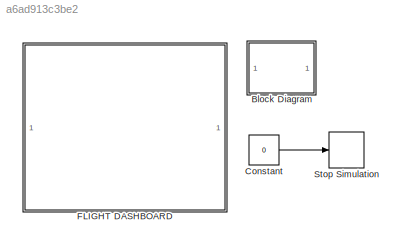
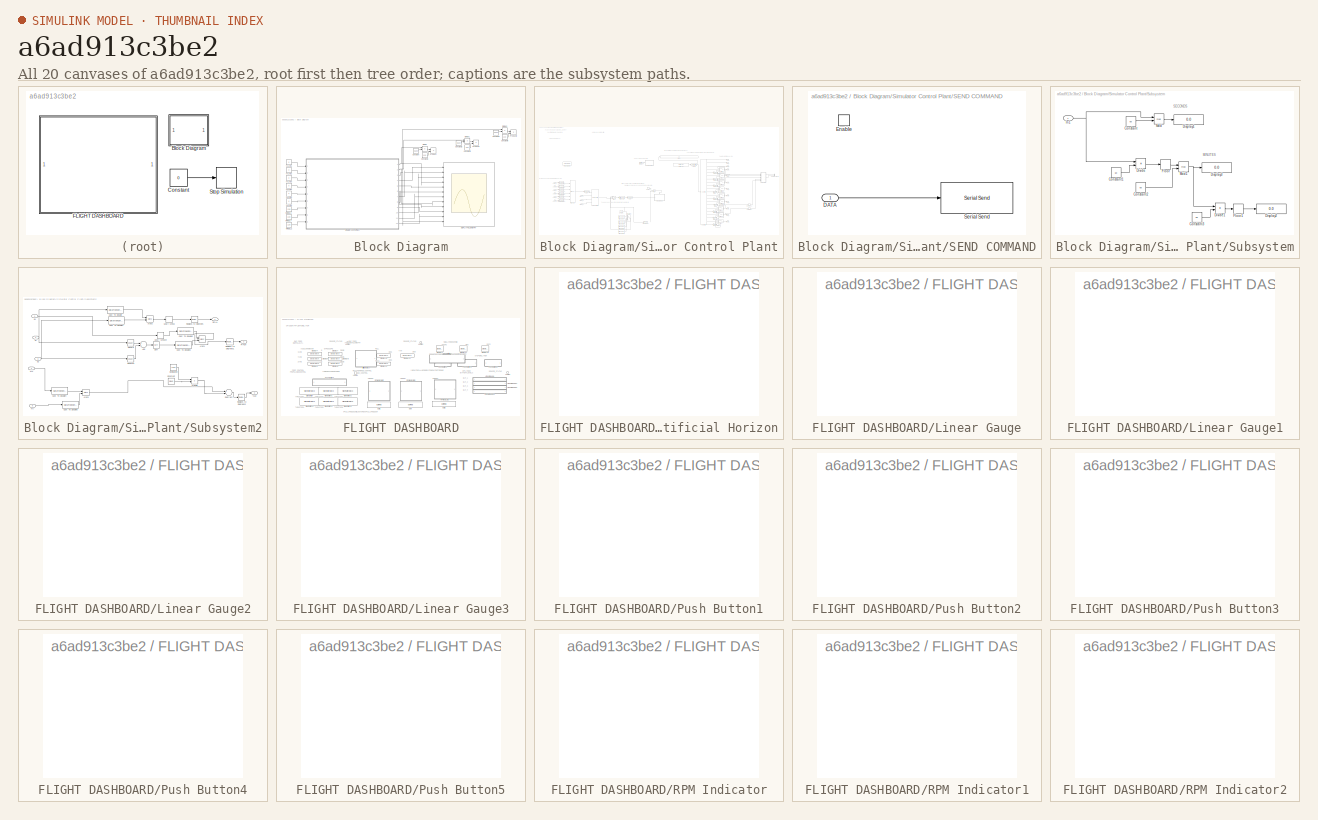
[diagram: thumbnail index - all 20 canvases of the model, root first then tree order]
MODEL slx_a6ad913c3be2
KIND model
CONFIG AbsTol = auto
CONFIG EnableMultiTasking = on
CONFIG FixedStep = auto
CONFIG MaxStep = auto
CONFIG MinStep = auto
CONFIG RelTol = 1e-3
CONFIG SampleTimeConstraint = Unconstrained
CONFIG Solver = FixedStepAuto
CONFIG SolverName = FixedStepAuto
CONFIG StartTime = 0.0
CONFIG StopTime = inf
BLOCK [SubSystem] Block Diagram
  Ports = []
  RequestExecContextInheritance = off
BLOCK [Constant] Block Diagram/Constant
  Value = 3600
BLOCK [Constant] Block Diagram/Constant1
  Value = 100
BLOCK [Constant] Block Diagram/Constant2
  Value = 3600
BLOCK [Constant] Block Diagram/Constant3
  Value = 100
BLOCK [Constant] Block Diagram/Constant4
  Value = 3600
BLOCK [Constant] Block Diagram/Constant5
  Value = 100
BLOCK [Scope] Block Diagram/DISPLAY TELEMETRY
  Floating = off
  NumInputPorts = 12
  Ports = [12]
  ScopeSpecificationString = Simulink.scopes.TimeScopeBlockCfg('CurrentConfiguration', extmgr.ConfigurationSet(extmgr.Configuration('Core','General UI',true,'FigureColor',[0 0.0549019607843137 0.105882352941176],'DisplayFullSourceName',true,'ShowMainToolbar',false,'ShowStatusbar',false),extmgr.Configuration('Core','Source UI',true),extmgr.Configuration('Sources','WiredSimulink',true,'DataLogging',true),extmgr.Configuration('V...<+12068ch>
BLOCK [Product] Block Diagram/Divide
  InputSameDT = off
  Inputs = */
  OutDataTypeStr = Inherit: Inherit via internal rule
  Ports = [2, 1]
  RndMeth = Floor
  SaturateOnIntegerOverflow = off
BLOCK [Product] Block Diagram/Divide1
  InputSameDT = off
  Inputs = */
  OutDataTypeStr = Inherit: Inherit via internal rule
  Ports = [2, 1]
  RndMeth = Floor
  SaturateOnIntegerOverflow = off
BLOCK [Product] Block Diagram/Divide2
  InputSameDT = off
  Inputs = */
  OutDataTypeStr = Inherit: Inherit via internal rule
  Ports = [2, 1]
  RndMeth = Floor
  SaturateOnIntegerOverflow = off
BLOCK [Product] Block Diagram/Product
  InputSameDT = off
  OutDataTypeStr = Inherit: Inherit via internal rule
  Ports = [2, 1]
  RndMeth = Floor
  SaturateOnIntegerOverflow = off
BLOCK [Product] Block Diagram/Product1
  InputSameDT = off
  OutDataTypeStr = Inherit: Inherit via internal rule
  Ports = [2, 1]
  RndMeth = Floor
  SaturateOnIntegerOverflow = off
BLOCK [Product] Block Diagram/Product2
  InputSameDT = off
  OutDataTypeStr = Inherit: Inherit via internal rule
  Ports = [2, 1]
  RndMeth = Floor
  SaturateOnIntegerOverflow = off
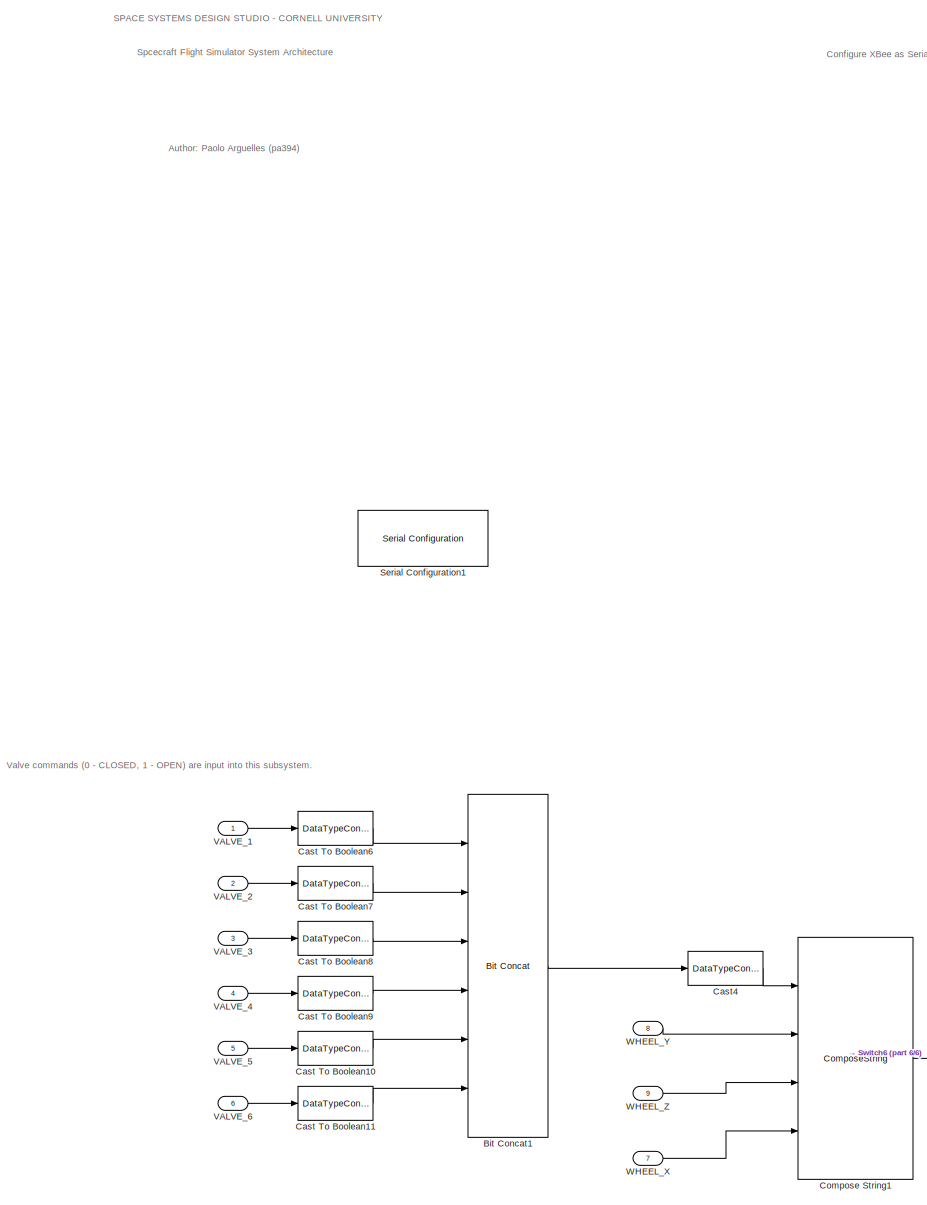
[diagram: Block Diagram/Simulator Control Plant - part 1/6, middle left region]
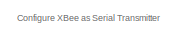
[diagram: Block Diagram/Simulator Control Plant - part 2/6, top left region]
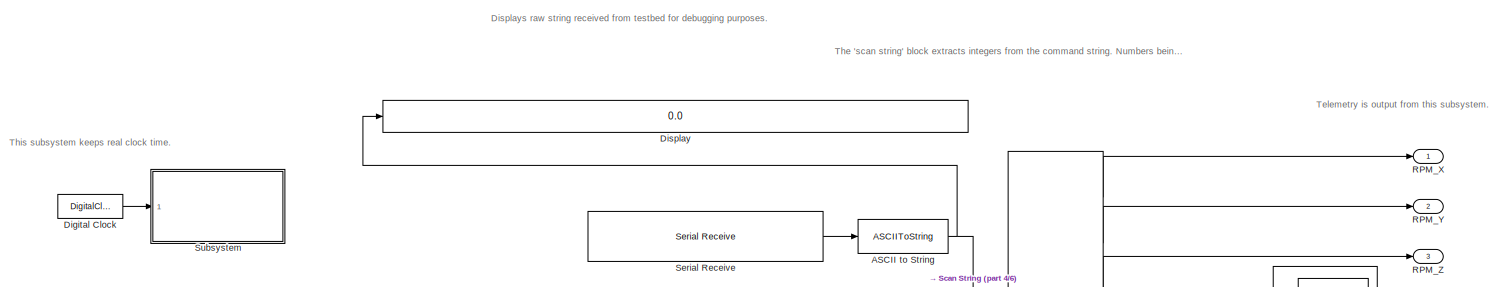
[diagram: Block Diagram/Simulator Control Plant - part 3/6, top center region]
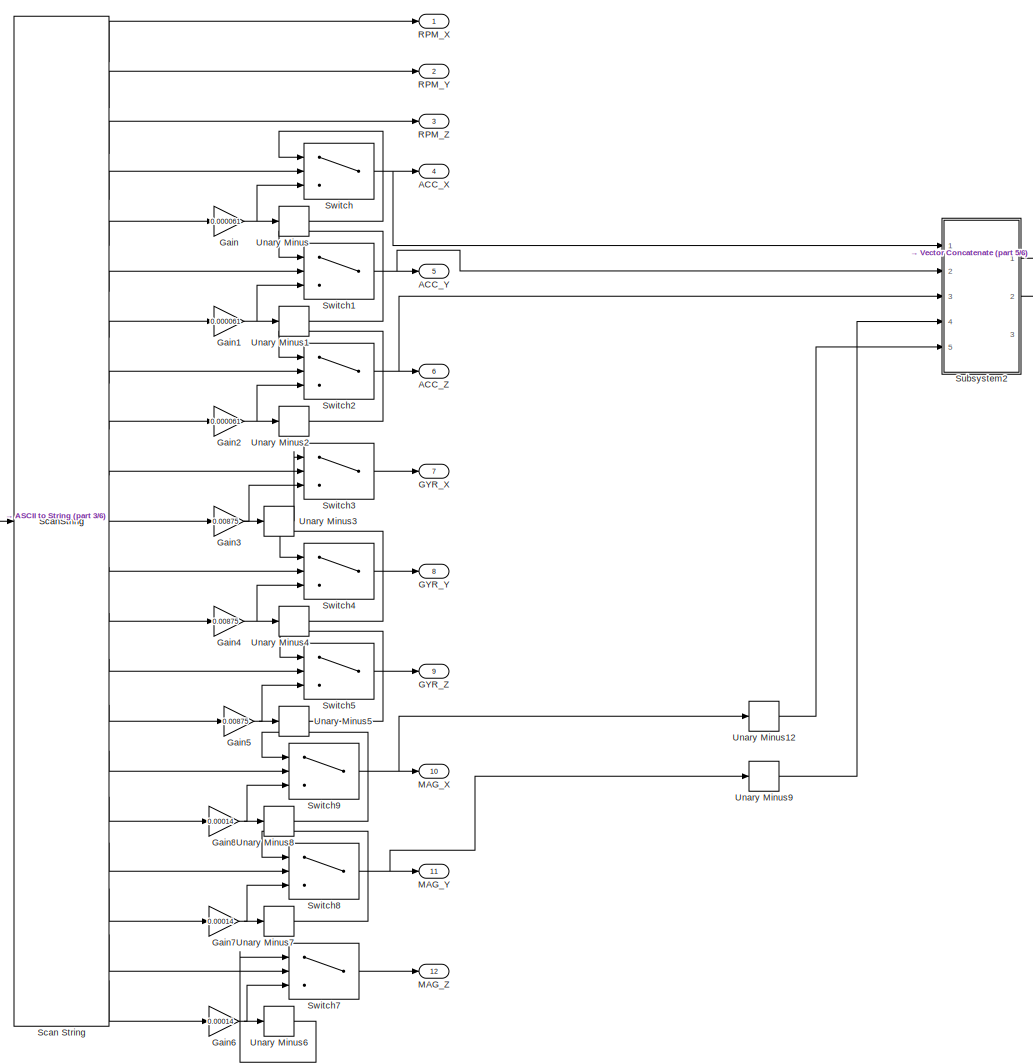
[diagram: Block Diagram/Simulator Control Plant - part 4/6, middle right region]
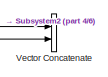
[diagram: Block Diagram/Simulator Control Plant - part 5/6, middle right region]
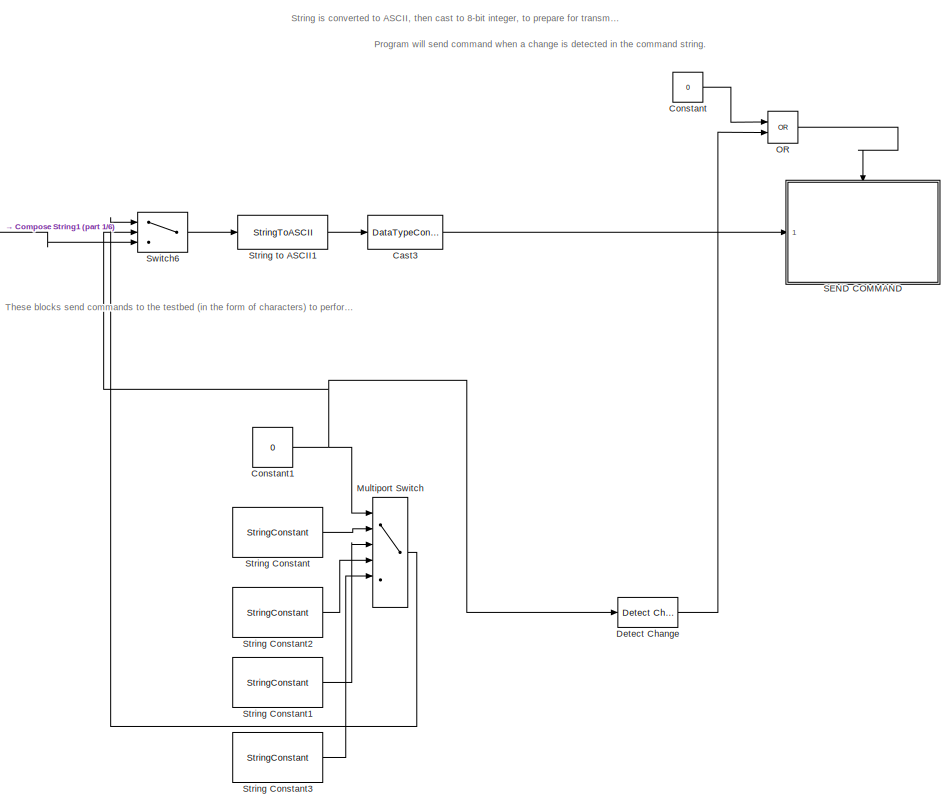
[diagram: Block Diagram/Simulator Control Plant - part 6/6, bottom center region]
BLOCK [SubSystem] Block Diagram/Simulator Control Plant
  Ports = [9, 12]
  RequestExecContextInheritance = off
BLOCK [Outport] Block Diagram/Simulator Control Plant/ ACC_X
  IconDisplay = Port number
  Port = 4
BLOCK [Outport] Block Diagram/Simulator Control Plant/ ACC_Y
  IconDisplay = Port number
  Port = 5
BLOCK [Outport] Block Diagram/Simulator Control Plant/ ACC_Z
  IconDisplay = Port number
  Port = 6
BLOCK [ASCIIToString] Block Diagram/Simulator Control Plant/ASCII to String
BLOCK [Reference] Block Diagram/Simulator Control Plant/Bit Concat1  REF=hdlsllib/Logic and Bit
Operations/Bit Concat
  Ports = [6, 1]
  SourceBlock = hdlsllib/Logic and Bit\nOperations/Bit Concat
  SourceProductBaseCode = HD
  SourceProductName = HDL Coder
  SourceType = Bit Concat
BLOCK [DataTypeConversion] Block Diagram/Simulator Control Plant/Cast To Boolean10
  OutDataTypeStr = boolean
  RndMeth = Floor
  SaturateOnIntegerOverflow = off
BLOCK [DataTypeConversion] Block Diagram/Simulator Control Plant/Cast To Boolean11
  OutDataTypeStr = boolean
  RndMeth = Floor
  SaturateOnIntegerOverflow = off
BLOCK [DataTypeConversion] Block Diagram/Simulator Control Plant/Cast To Boolean6
  OutDataTypeStr = boolean
  RndMeth = Floor
  SaturateOnIntegerOverflow = off
BLOCK [DataTypeConversion] Block Diagram/Simulator Control Plant/Cast To Boolean7
  OutDataTypeStr = boolean
  RndMeth = Floor
  SaturateOnIntegerOverflow = off
BLOCK [DataTypeConversion] Block Diagram/Simulator Control Plant/Cast To Boolean8
  OutDataTypeStr = boolean
  RndMeth = Floor
  SaturateOnIntegerOverflow = off
BLOCK [DataTypeConversion] Block Diagram/Simulator Control Plant/Cast To Boolean9
  OutDataTypeStr = boolean
  RndMeth = Floor
  SaturateOnIntegerOverflow = off
BLOCK [DataTypeConversion] Block Diagram/Simulator Control Plant/Cast3
  OutDataTypeStr = int8
  RndMeth = Floor
  SaturateOnIntegerOverflow = off
BLOCK [DataTypeConversion] Block Diagram/Simulator Control Plant/Cast4
  OutDataTypeStr = int8
  RndMeth = Floor
  SaturateOnIntegerOverflow = off
BLOCK [ComposeString] Block Diagram/Simulator Control Plant/Compose String1
  Format = "%d;%d;%d;%d\n"
  Ports = [4, 1]
BLOCK [Constant] Block Diagram/Simulator Control Plant/Constant
  Value = 0
BLOCK [Constant] Block Diagram/Simulator Control Plant/Constant1
  SampleTime = -1
  Value = 0
  VectorParams1D = off
BLOCK [Reference] Block Diagram/Simulator Control Plant/Detect Change  REF=simulink/Logic and Bit
Operations/Detect
Change
  Ports = [1, 1]
  SourceBlock = simulink/Logic and Bit\nOperations/Detect\nChange
  SourceProductBaseCode = SL
  SourceProductName = Simulink
  SourceType = Detect Change
BLOCK [DigitalClock] Block Diagram/Simulator Control Plant/Digital Clock
  SampleTime = -1
BLOCK [Display] Block Diagram/Simulator Control Plant/Display
  Decimation = 1
  Ports = [1]
BLOCK [Outport] Block Diagram/Simulator Control Plant/GYR_X
  IconDisplay = Port number
  Port = 7
BLOCK [Outport] Block Diagram/Simulator Control Plant/GYR_Y
  IconDisplay = Port number
  Port = 8
BLOCK [Outport] Block Diagram/Simulator Control Plant/GYR_Z
  IconDisplay = Port number
  Port = 9
BLOCK [Gain] Block Diagram/Simulator Control Plant/Gain
  Gain = 0.000061
  OutDataTypeStr = Inherit: Inherit via internal rule
  ParamDataTypeStr = Inherit: Inherit via internal rule
  SaturateOnIntegerOverflow = off
BLOCK [Gain] Block Diagram/Simulator Control Plant/Gain1
  Gain = 0.000061
  OutDataTypeStr = Inherit: Inherit via internal rule
  ParamDataTypeStr = Inherit: Inherit via internal rule
  SaturateOnIntegerOverflow = off
BLOCK [Gain] Block Diagram/Simulator Control Plant/Gain2
  Gain = 0.000061
  OutDataTypeStr = Inherit: Inherit via internal rule
  ParamDataTypeStr = Inherit: Inherit via internal rule
  SaturateOnIntegerOverflow = off
BLOCK [Gain] Block Diagram/Simulator Control Plant/Gain3
  Gain = 0.00875
  OutDataTypeStr = Inherit: Inherit via internal rule
  ParamDataTypeStr = Inherit: Inherit via internal rule
  SaturateOnIntegerOverflow = off
BLOCK [Gain] Block Diagram/Simulator Control Plant/Gain4
  Gain = 0.00875
  OutDataTypeStr = Inherit: Inherit via internal rule
  ParamDataTypeStr = Inherit: Inherit via internal rule
  SaturateOnIntegerOverflow = off
BLOCK [Gain] Block Diagram/Simulator Control Plant/Gain5
  Gain = 0.00875
  OutDataTypeStr = Inherit: Inherit via internal rule
  ParamDataTypeStr = Inherit: Inherit via internal rule
  SaturateOnIntegerOverflow = off
BLOCK [Gain] Block Diagram/Simulator Control Plant/Gain6
  Gain = 0.00014
  OutDataTypeStr = Inherit: Inherit via internal rule
  ParamDataTypeStr = Inherit: Inherit via internal rule
  SaturateOnIntegerOverflow = off
BLOCK [Gain] Block Diagram/Simulator Control Plant/Gain7
  Gain = 0.00014
  OutDataTypeStr = Inherit: Inherit via internal rule
  ParamDataTypeStr = Inherit: Inherit via internal rule
  SaturateOnIntegerOverflow = off
BLOCK [Gain] Block Diagram/Simulator Control Plant/Gain8
  Gain = 0.00014
  OutDataTypeStr = Inherit: Inherit via internal rule
  ParamDataTypeStr = Inherit: Inherit via internal rule
  SaturateOnIntegerOverflow = off
BLOCK [Outport] Block Diagram/Simulator Control Plant/MAG_X
  IconDisplay = Port number
  Port = 10
BLOCK [Outport] Block Diagram/Simulator Control Plant/MAG_Y
  IconDisplay = Port number
  Port = 11
BLOCK [Outport] Block Diagram/Simulator Control Plant/MAG_Z
  IconDisplay = Port number
  Port = 12
BLOCK [MultiPortSwitch] Block Diagram/Simulator Control Plant/Multiport Switch
  DiagnosticForDefault = None
  InputSameDT = off
  Inputs = 5
  Ports = [6, 1]
  SaturateOnIntegerOverflow = off
BLOCK [Logic] Block Diagram/Simulator Control Plant/OR
  AllPortsSameDT = off
  IconShape = distinctive
  Operator = OR
  OutDataTypeStr = boolean
  Ports = [2, 1]
BLOCK [Outport] Block Diagram/Simulator Control Plant/RPM_X
  IconDisplay = Port number
BLOCK [Outport] Block Diagram/Simulator Control Plant/RPM_Y
  IconDisplay = Port number
  Port = 2
BLOCK [Outport] Block Diagram/Simulator Control Plant/RPM_Z
  IconDisplay = Port number
  Port = 3
BLOCK [SubSystem] Block Diagram/Simulator Control Plant/SEND COMMAND
  Ports = [1, 0, 1]
  RequestExecContextInheritance = off
BLOCK [Inport] Block Diagram/Simulator Control Plant/SEND COMMAND/DATA
  IconDisplay = Port number
BLOCK [EnablePort] Block Diagram/Simulator Control Plant/SEND COMMAND/Enable
  Ports = [0, 1]
  ShowOutputPort = on
BLOCK [Reference] Block Diagram/Simulator Control Plant/SEND COMMAND/Serial Send  REF=instrumentlib/Serial Send
  Ports = [1]
  SourceBlock = instrumentlib/Serial Send
  SourceProductBaseCode = IC
  SourceProductName = Instrument Control Toolbox
  SourceType = Serial Send
BLOCK [ScanString] Block Diagram/Simulator Control Plant/Scan String
  Format = "\n%d;%d;%d$%d$%d$%d$%d$%d$%d$%d$%d$%d$%d$%d$%d$%d$%d$%d$%d$%d$%d\r"
  Ports = [1, 21]
BLOCK [Reference] Block Diagram/Simulator Control Plant/Serial Configuration1  REF=instrumentlib/Serial Configuration
  Ports = []
  Priority = -200000
  SourceBlock = instrumentlib/Serial Configuration
  SourceProductBaseCode = IC
  SourceProductName = Instrument Control Toolbox
  SourceType = Serial Configuration
BLOCK [Reference] Block Diagram/Simulator Control Plant/Serial Receive  REF=instrumentlib/Serial Receive
  Ports = [0, 1]
  SourceBlock = instrumentlib/Serial Receive
  SourceProductBaseCode = IC
  SourceProductName = Instrument Control Toolbox
  SourceType = Serial Receive
BLOCK [StringConstant] Block Diagram/Simulator Control Plant/String Constant
  String = 'Q'
BLOCK [StringConstant] Block Diagram/Simulator Control Plant/String Constant1
  String = 'R'
BLOCK [StringConstant] Block Diagram/Simulator Control Plant/String Constant2
  String = 'S'
BLOCK [StringConstant] Block Diagram/Simulator Control Plant/String Constant3
  String = 'B'
BLOCK [StringToASCII] Block Diagram/Simulator Control Plant/String to ASCII1
  MaximumLength = 27
BLOCK [SubSystem] Block Diagram/Simulator Control Plant/Subsystem
  Ports = [1]
  RequestExecContextInheritance = off
BLOCK [Constant] Block Diagram/Simulator Control Plant/Subsystem/Constant
  Value = 60
BLOCK [Constant] Block Diagram/Simulator Control Plant/Subsystem/Constant1
  Value = 60
BLOCK [Constant] Block Diagram/Simulator Control Plant/Subsystem/Constant2
  Value = 60
BLOCK [Constant] Block Diagram/Simulator Control Plant/Subsystem/Constant3
  Value = 60
BLOCK [Display] Block Diagram/Simulator Control Plant/Subsystem/Display1
  Decimation = 1
  Ports = [1]
BLOCK [Display] Block Diagram/Simulator Control Plant/Subsystem/Display2
  Decimation = 1
  Ports = [1]
BLOCK [Display] Block Diagram/Simulator Control Plant/Subsystem/Display3
  Decimation = 1
  Ports = [1]
BLOCK [Product] Block Diagram/Simulator Control Plant/Subsystem/Divide
  InputSameDT = off
  Inputs = */
  OutDataTypeStr = Inherit: Inherit via internal rule
  Ports = [2, 1]
  RndMeth = Floor
  SaturateOnIntegerOverflow = off
BLOCK [Product] Block Diagram/Simulator Control Plant/Subsystem/Divide1
  InputSameDT = off
  Inputs = */
  OutDataTypeStr = Inherit: Inherit via internal rule
  Ports = [2, 1]
  RndMeth = Floor
  SaturateOnIntegerOverflow = off
BLOCK [Rounding] Block Diagram/Simulator Control Plant/Subsystem/Floor
BLOCK [Rounding] Block Diagram/Simulator Control Plant/Subsystem/Floor1
BLOCK [Inport] Block Diagram/Simulator Control Plant/Subsystem/In1
  IconDisplay = Port number
BLOCK [Math] Block Diagram/Simulator Control Plant/Subsystem/Mod
  Operator = mod
  Ports = [2, 1]
BLOCK [Math] Block Diagram/Simulator Control Plant/Subsystem/Mod1
  Operator = mod
  Ports = [2, 1]
BLOCK [SubSystem] Block Diagram/Simulator Control Plant/Subsystem2
  Ports = [5, 3]
  RequestExecContextInheritance = off
BLOCK [Outport] Block Diagram/Simulator Control Plant/Subsystem2/ PITCH
  IconDisplay = Port number
  Port = 2
BLOCK [Outport] Block Diagram/Simulator Control Plant/Subsystem2/ ROLL
  IconDisplay = Port number
BLOCK [Outport] Block Diagram/Simulator Control Plant/Subsystem2/ YAW
  IconDisplay = Port number
  Port = 3
BLOCK [Sum] Block Diagram/Simulator Control Plant/Subsystem2/Add
  InputSameDT = off
  OutDataTypeStr = Inherit: Inherit via internal rule
  Ports = [2, 1]
  SaturateOnIntegerOverflow = off
BLOCK [Trigonometry] Block Diagram/Simulator Control Plant/Subsystem2/Atan1
  Operator = atan2
  Ports = [2, 1]
BLOCK [Trigonometry] Block Diagram/Simulator Control Plant/Subsystem2/Atan2
  Operator = atan2
  OutputSignalType = real
  Ports = [2, 1]
BLOCK [Trigonometry] Block Diagram/Simulator Control Plant/Subsystem2/Atan3
  Operator = atan2
  Ports = [2, 1]
BLOCK [DataTypeConversion] Block Diagram/Simulator Control Plant/Subsystem2/Cast To Double
  OutDataTypeStr = double
  RndMeth = Floor
  SaturateOnIntegerOverflow = off
BLOCK [DataTypeConversion] Block Diagram/Simulator Control Plant/Subsystem2/Cast To Double1
  OutDataTypeStr = double
  RndMeth = Floor
  SaturateOnIntegerOverflow = off
BLOCK [DataTypeConversion] Block Diagram/Simulator Control Plant/Subsystem2/Cast To Double2
  OutDataTypeStr = double
  RndMeth = Floor
  SaturateOnIntegerOverflow = off
BLOCK [DataTypeConversion] Block Diagram/Simulator Control Plant/Subsystem2/Cast To Double3
  OutDataTypeStr = double
  RndMeth = Floor
  SaturateOnIntegerOverflow = off
BLOCK [DataTypeConversion] Block Diagram/Simulator Control Plant/Subsystem2/Cast To Double4
  OutDataTypeStr = double
  RndMeth = Floor
  SaturateOnIntegerOverflow = off
BLOCK [DataTypeConversion] Block Diagram/Simulator Control Plant/Subsystem2/Cast To Double5
  OutDataTypeStr = double
  RndMeth = Floor
  SaturateOnIntegerOverflow = off
BLOCK [Constant] Block Diagram/Simulator Control Plant/Subsystem2/Constant
  Value = pi/180
BLOCK [Product] Block Diagram/Simulator Control Plant/Subsystem2/Multiply
  InputSameDT = off
  OutDataTypeStr = Inherit: Inherit via internal rule
  Ports = [2, 1]
  RndMeth = Floor
  SaturateOnIntegerOverflow = off
BLOCK [Reference] Block Diagram/Simulator Control Plant/Subsystem2/Radians to Degrees  REF=simulink_extras/Transformations/Radians
to Degrees
  Ports = [1, 1]
  SourceBlock = simulink_extras/Transformations/Radians\nto Degrees
  SourceProductBaseCode = SL
  SourceProductName = Simulink
  SourceType = RadiansToDegrees
BLOCK [Reference] Block Diagram/Simulator Control Plant/Subsystem2/Radians to Degrees1  REF=simulink_extras/Transformations/Radians
to Degrees
  Ports = [1, 1]
  SourceBlock = simulink_extras/Transformations/Radians\nto Degrees
  SourceProductBaseCode = SL
  SourceProductName = Simulink
  SourceType = RadiansToDegrees
BLOCK [Reference] Block Diagram/Simulator Control Plant/Subsystem2/Radians to Degrees2  REF=simulink_extras/Transformations/Radians
to Degrees
  Ports = [1, 1]
  SourceBlock = simulink_extras/Transformations/Radians\nto Degrees
  SourceProductBaseCode = SL
  SourceProductName = Simulink
  SourceType = RadiansToDegrees
BLOCK [Sqrt] Block Diagram/Simulator Control Plant/Subsystem2/Sqrt
BLOCK [Math] Block Diagram/Simulator Control Plant/Subsystem2/Square
  Operator = square
  Ports = [1, 1]
BLOCK [Math] Block Diagram/Simulator Control Plant/Subsystem2/Square1
  Operator = square
  Ports = [1, 1]
BLOCK [Sum] Block Diagram/Simulator Control Plant/Subsystem2/Subtract
  InputSameDT = off
  Inputs = +-
  OutDataTypeStr = Inherit: Inherit via internal rule
  Ports = [2, 1]
  SaturateOnIntegerOverflow = off
BLOCK [UnaryMinus] Block Diagram/Simulator Control Plant/Subsystem2/Unary Minus
BLOCK [UnaryMinus] Block Diagram/Simulator Control Plant/Subsystem2/Unary Minus9
BLOCK [Inport] Block Diagram/Simulator Control Plant/Subsystem2/ax
  IconDisplay = Port number
BLOCK [Inport] Block Diagram/Simulator Control Plant/Subsystem2/ay
  IconDisplay = Port number
  Port = 2
BLOCK [Inport] Block Diagram/Simulator Control Plant/Subsystem2/az
  IconDisplay = Port number
  Port = 3
BLOCK [Constant] Block Diagram/Simulator Control Plant/Subsystem2/declination
  Value = 11.84
BLOCK [Inport] Block Diagram/Simulator Control Plant/Subsystem2/mx
  IconDisplay = Port number
  Port = 4
BLOCK [Inport] Block Diagram/Simulator Control Plant/Subsystem2/my
  IconDisplay = Port number
  Port = 5
BLOCK [Switch] Block Diagram/Simulator Control Plant/Switch
  Criteria = u2 ~= 0
  InputSameDT = off
  SaturateOnIntegerOverflow = off
BLOCK [Switch] Block Diagram/Simulator Control Plant/Switch1
  Criteria = u2 ~= 0
  InputSameDT = off
  SaturateOnIntegerOverflow = off
BLOCK [Switch] Block Diagram/Simulator Control Plant/Switch2
  Criteria = u2 ~= 0
  InputSameDT = off
  SaturateOnIntegerOverflow = off
BLOCK [Switch] Block Diagram/Simulator Control Plant/Switch3
  Criteria = u2 ~= 0
  InputSameDT = off
  SaturateOnIntegerOverflow = off
BLOCK [Switch] Block Diagram/Simulator Control Plant/Switch4
  Criteria = u2 ~= 0
  InputSameDT = off
  SaturateOnIntegerOverflow = off
BLOCK [Switch] Block Diagram/Simulator Control Plant/Switch5
  Criteria = u2 ~= 0
  InputSameDT = off
  SaturateOnIntegerOverflow = off
BLOCK [Switch] Block Diagram/Simulator Control Plant/Switch6
  Criteria = u2 ~= 0
  InputSameDT = off
  SaturateOnIntegerOverflow = off
BLOCK [Switch] Block Diagram/Simulator Control Plant/Switch7
  Criteria = u2 ~= 0
  InputSameDT = off
  SaturateOnIntegerOverflow = off
BLOCK [Switch] Block Diagram/Simulator Control Plant/Switch8
  Criteria = u2 ~= 0
  InputSameDT = off
  SaturateOnIntegerOverflow = off
BLOCK [Switch] Block Diagram/Simulator Control Plant/Switch9
  Criteria = u2 ~= 0
  InputSameDT = off
  SaturateOnIntegerOverflow = off
BLOCK [UnaryMinus] Block Diagram/Simulator Control Plant/Unary Minus
BLOCK [UnaryMinus] Block Diagram/Simulator Control Plant/Unary Minus1
BLOCK [UnaryMinus] Block Diagram/Simulator Control Plant/Unary Minus12
BLOCK [UnaryMinus] Block Diagram/Simulator Control Plant/Unary Minus2
BLOCK [UnaryMinus] Block Diagram/Simulator Control Plant/Unary Minus3
BLOCK [UnaryMinus] Block Diagram/Simulator Control Plant/Unary Minus4
BLOCK [UnaryMinus] Block Diagram/Simulator Control Plant/Unary Minus5
BLOCK [UnaryMinus] Block Diagram/Simulator Control Plant/Unary Minus6
BLOCK [UnaryMinus] Block Diagram/Simulator Control Plant/Unary Minus7
BLOCK [UnaryMinus] Block Diagram/Simulator Control Plant/Unary Minus8
BLOCK [UnaryMinus] Block Diagram/Simulator Control Plant/Unary Minus9
BLOCK [Inport] Block Diagram/Simulator Control Plant/VALVE_1
  IconDisplay = Port number
BLOCK [Inport] Block Diagram/Simulator Control Plant/VALVE_2
  IconDisplay = Port number
  Port = 2
BLOCK [Inport] Block Diagram/Simulator Control Plant/VALVE_3
  IconDisplay = Port number
  Port = 3
BLOCK [Inport] Block Diagram/Simulator Control Plant/VALVE_4
  IconDisplay = Port number
  Port = 4
BLOCK [Inport] Block Diagram/Simulator Control Plant/VALVE_5
  IconDisplay = Port number
  Port = 5
BLOCK [Inport] Block Diagram/Simulator Control Plant/VALVE_6
  IconDisplay = Port number
  Port = 6
BLOCK [Concatenate] Block Diagram/Simulator Control Plant/Vector Concatenate
  Ports = [2, 1]
BLOCK [Inport] Block Diagram/Simulator Control Plant/WHEEL_X
  IconDisplay = Port number
  Port = 7
BLOCK [Inport] Block Diagram/Simulator Control Plant/WHEEL_Y
  IconDisplay = Port number
  Port = 8
BLOCK [Inport] Block Diagram/Simulator Control Plant/WHEEL_Z
  IconDisplay = Port number
  Port = 9
BLOCK [Constant] Block Diagram/VALVE 1
  SampleTime = 0.01
  Value = 0
BLOCK [Constant] Block Diagram/VALVE 2
  SampleTime = 0.01
  Value = 0
BLOCK [Constant] Block Diagram/VALVE 3
  SampleTime = 0.01
  Value = 0
BLOCK [Constant] Block Diagram/VALVE 4
  SampleTime = 0.01
  Value = 0
BLOCK [Constant] Block Diagram/VALVE 5
  SampleTime = 0.01
  Value = 0
BLOCK [Constant] Block Diagram/VALVE 6
  SampleTime = 0.01
  Value = 0
BLOCK [Constant] Block Diagram/WHEEL X
  OutDataTypeStr = int16
  SampleTime = -1
  Value = 128
BLOCK [Constant] Block Diagram/WHEEL Y
  OutDataTypeStr = int16
  SampleTime = -1
  Value = 128
BLOCK [Constant] Block Diagram/WHEEL Z
  OutDataTypeStr = int16
  SampleTime = -1
  Value = 128
BLOCK [Constant] Constant
  Value = 0
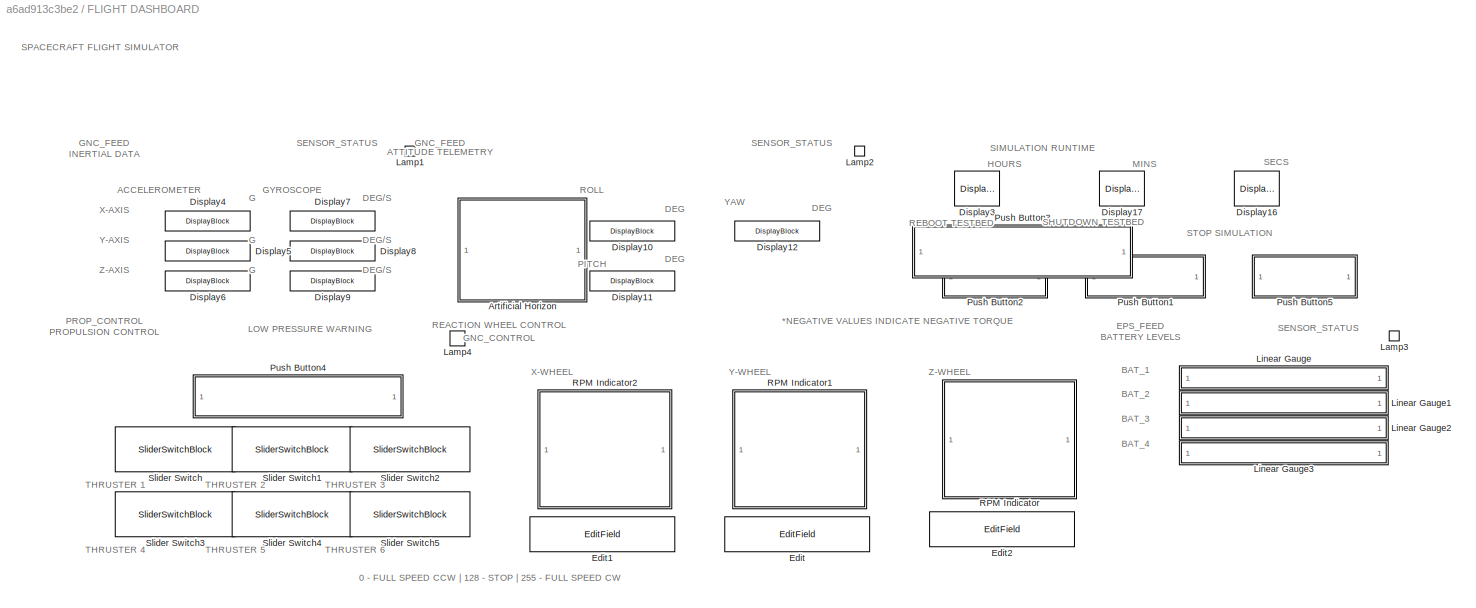
BLOCK [SubSystem] FLIGHT DASHBOARD
  Ports = []
  RequestExecContextInheritance = off
BLOCK [SubSystem] FLIGHT DASHBOARD/Artificial Horizon
  DialogController = aeroblksHMICreateDDGDialog
  IsWebBlock = on
  Ports = []
  RequestExecContextInheritance = off
BLOCK [DisplayBlock] FLIGHT DASHBOARD/Display10
  Alignment = Left
  LabelPosition = Hide
  WebBlockId = 325
BLOCK [DisplayBlock] FLIGHT DASHBOARD/Display11
  Alignment = Left
  LabelPosition = Hide
  WebBlockId = 327
BLOCK [DisplayBlock] FLIGHT DASHBOARD/Display12
  Alignment = Left
  LabelPosition = Hide
  WebBlockId = 329
BLOCK [DisplayBlock] FLIGHT DASHBOARD/Display16
  Alignment = Left
  LabelPosition = Hide
  WebBlockId = 711
BLOCK [DisplayBlock] FLIGHT DASHBOARD/Display17
  Alignment = Left
  LabelPosition = Hide
  WebBlockId = 712
BLOCK [DisplayBlock] FLIGHT DASHBOARD/Display3
  Alignment = Left
  LabelPosition = Hide
  WebBlockId = 710
BLOCK [DisplayBlock] FLIGHT DASHBOARD/Display4
  Alignment = Left
  LabelPosition = Hide
  WebBlockId = 266
BLOCK [DisplayBlock] FLIGHT DASHBOARD/Display5
  Alignment = Left
  LabelPosition = Hide
  WebBlockId = 268
BLOCK [DisplayBlock] FLIGHT DASHBOARD/Display6
  Alignment = Left
  LabelPosition = Hide
  WebBlockId = 270
BLOCK [DisplayBlock] FLIGHT DASHBOARD/Display7
  Alignment = Left
  LabelPosition = Hide
  WebBlockId = 313
BLOCK [DisplayBlock] FLIGHT DASHBOARD/Display8
  Alignment = Left
  LabelPosition = Hide
  WebBlockId = 314
BLOCK [DisplayBlock] FLIGHT DASHBOARD/Display9
  Alignment = Left
  LabelPosition = Hide
  WebBlockId = 315
BLOCK [EditField] FLIGHT DASHBOARD/Edit
  Alignment = Center
  LabelPosition = Hide
  WebBlockId = 830
BLOCK [EditField] FLIGHT DASHBOARD/Edit1
  Alignment = Center
  LabelPosition = Hide
  WebBlockId = 828
BLOCK [EditField] FLIGHT DASHBOARD/Edit2
  Alignment = Center
  LabelPosition = Hide
  WebBlockId = 829
BLOCK [LampBlock] FLIGHT DASHBOARD/Lamp1
  LabelPosition = Hide
  WebBlockId = 841
BLOCK [LampBlock] FLIGHT DASHBOARD/Lamp2
  LabelPosition = Hide
  WebBlockId = 399
BLOCK [LampBlock] FLIGHT DASHBOARD/Lamp3
  LabelPosition = Hide
  WebBlockId = 401
BLOCK [LampBlock] FLIGHT DASHBOARD/Lamp4
  LabelPosition = Hide
  WebBlockId = 1063
BLOCK [SubSystem] FLIGHT DASHBOARD/Linear Gauge
  DialogController = hmiCreateDDGDialog
  IsWebBlock = on
  Ports = []
  RequestExecContextInheritance = off
BLOCK [SubSystem] FLIGHT DASHBOARD/Linear Gauge1
  DialogController = hmiCreateDDGDialog
  IsWebBlock = on
  Ports = []
  RequestExecContextInheritance = off
BLOCK [SubSystem] FLIGHT DASHBOARD/Linear Gauge2
  DialogController = hmiCreateDDGDialog
  IsWebBlock = on
  Ports = []
  RequestExecContextInheritance = off
BLOCK [SubSystem] FLIGHT DASHBOARD/Linear Gauge3
  DialogController = hmiCreateDDGDialog
  IsWebBlock = on
  Ports = []
  RequestExecContextInheritance = off
BLOCK [SubSystem] FLIGHT DASHBOARD/Push Button1
  DialogController = hmiCreateDDGDialog
  IsWebBlock = on
  Ports = []
  RequestExecContextInheritance = off
BLOCK [SubSystem] FLIGHT DASHBOARD/Push Button2
  DialogController = hmiCreateDDGDialog
  IsWebBlock = on
  Ports = []
  RequestExecContextInheritance = off
BLOCK [SubSystem] FLIGHT DASHBOARD/Push Button3
  DialogController = hmiCreateDDGDialog
  IsWebBlock = on
  Ports = []
  RequestExecContextInheritance = off
BLOCK [SubSystem] FLIGHT DASHBOARD/Push Button4
  DialogController = hmiCreateDDGDialog
  IsWebBlock = on
  Ports = []
  RequestExecContextInheritance = off
BLOCK [SubSystem] FLIGHT DASHBOARD/Push Button5
  DialogController = hmiCreateDDGDialog
  IsWebBlock = on
  Ports = []
  RequestExecContextInheritance = off
BLOCK [SubSystem] FLIGHT DASHBOARD/RPM Indicator
  DialogController = aeroblksHMICreateDDGDialog
  IsWebBlock = on
  Ports = []
  RequestExecContextInheritance = off
BLOCK [SubSystem] FLIGHT DASHBOARD/RPM Indicator1
  DialogController = aeroblksHMICreateDDGDialog
  IsWebBlock = on
  Ports = []
  RequestExecContextInheritance = off
BLOCK [SubSystem] FLIGHT DASHBOARD/RPM Indicator2
  DialogController = aeroblksHMICreateDDGDialog
  IsWebBlock = on
  Ports = []
  RequestExecContextInheritance = off
BLOCK [SliderSwitchBlock] FLIGHT DASHBOARD/Slider Switch
  WebBlockId = 1066
BLOCK [SliderSwitchBlock] FLIGHT DASHBOARD/Slider Switch1
  WebBlockId = 1067
BLOCK [SliderSwitchBlock] FLIGHT DASHBOARD/Slider Switch2
  WebBlockId = 1068
BLOCK [SliderSwitchBlock] FLIGHT DASHBOARD/Slider Switch3
  WebBlockId = 1069
BLOCK [SliderSwitchBlock] FLIGHT DASHBOARD/Slider Switch4
  WebBlockId = 1070
BLOCK [SliderSwitchBlock] FLIGHT DASHBOARD/Slider Switch5
  WebBlockId = 1071
BLOCK [Stop] Stop Simulation
ANNOTATION Block Diagram/Simulator Control Plant: SPACE SYSTEMS DESIGN STUDIO - CORNELL UNIVERSITY
ANNOTATION Block Diagram/Simulator Control Plant: Author: Paolo Arguelles (pa394)
ANNOTATION Block Diagram/Simulator Control Plant: Spcecraft Flight Simulator System Architecture
ANNOTATION Block Diagram/Simulator Control Plant: Configure XBee as Serial Transmitter
ANNOTATION Block Diagram/Simulator Control Plant: Displays raw string received from testbed for debugging purposes.
ANNOTATION Block Diagram/Simulator Control Plant: Program will send command when a change is detected in the command string.
ANNOTATION Block Diagram/Simulator Control Plant: String is converted to ASCII, then cast to 8-bit integer, to prepare for transmission to testbed.
ANNOTATION Block Diagram/Simulator Control Plant: Telemetry is output from this subsystem.
ANNOTATION Block Diagram/Simulator Control Plant: The 'scan string' block extracts integers from the command string. Numbers being extracted consist of data and sign bits. Raw data is then scaled by a constant (predetermined by the IMU datasheet) to convert the ADC integer into engineering units.
ANNOTATION Block Diagram/Simulator Control Plant: These blocks send commands to the testbed (in the form of characters) to perform remote reboots/shutdown of the testbed computer. No need to worry about these -- these just make it more convenient to reboot the system in the event of an error.
ANNOTATION Block Diagram/Simulator Control Plant: This subsystem keeps real clock time.
ANNOTATION Block Diagram/Simulator Control Plant: Valve commands (0 - CLOSED, 1 - OPEN) are input into this subsystem.
ANNOTATION Block Diagram/Simulator Control Plant/Subsystem: MINUTES
ANNOTATION Block Diagram/Simulator Control Plant/Subsystem: SECONDS
ANNOTATION FLIGHT DASHBOARD: BATTERY LEVELS
ANNOTATION FLIGHT DASHBOARD: PROPULSION CONTROL
ANNOTATION FLIGHT DASHBOARD: DEG
ANNOTATION FLIGHT DASHBOARD: PITCH
ANNOTATION FLIGHT DASHBOARD: ROLL
ANNOTATION FLIGHT DASHBOARD: YAW
ANNOTATION FLIGHT DASHBOARD: HOURS
ANNOTATION FLIGHT DASHBOARD: MINS
ANNOTATION FLIGHT DASHBOARD: SECS
ANNOTATION FLIGHT DASHBOARD: SIMULATION RUNTIME
ANNOTATION FLIGHT DASHBOARD: STOP SIMULATION
ANNOTATION FLIGHT DASHBOARD: LOW PRESSURE WARNING
ANNOTATION FLIGHT DASHBOARD: 0 - FULL SPEED CCW | 128 - STOP | 255 - FULL SPEED CW
ANNOTATION FLIGHT DASHBOARD: ATTITUDE TELEMETRY
ANNOTATION FLIGHT DASHBOARD: INERTIAL DATA
ANNOTATION FLIGHT DASHBOARD: REACTION WHEEL CONTROL
ANNOTATION FLIGHT DASHBOARD: *NEGATIVE VALUES INDICATE NEGATIVE TORQUE
ANNOTATION FLIGHT DASHBOARD: DEG/S
ANNOTATION FLIGHT DASHBOARD: G
ANNOTATION FLIGHT DASHBOARD: X-AXIS
ANNOTATION FLIGHT DASHBOARD: Y-AXIS
ANNOTATION FLIGHT DASHBOARD: Z-AXIS
ANNOTATION FLIGHT DASHBOARD: ACCELEROMETER
ANNOTATION FLIGHT DASHBOARD: GYROSCOPE
ANNOTATION FLIGHT DASHBOARD: REBOOT TESTBED
ANNOTATION FLIGHT DASHBOARD: SHUTDOWN TESTBED
ANNOTATION FLIGHT DASHBOARD: THRUSTER 1
ANNOTATION FLIGHT DASHBOARD: THRUSTER 2
ANNOTATION FLIGHT DASHBOARD: THRUSTER 3
ANNOTATION FLIGHT DASHBOARD: THRUSTER 4
ANNOTATION FLIGHT DASHBOARD: THRUSTER 5
ANNOTATION FLIGHT DASHBOARD: THRUSTER 6
ANNOTATION FLIGHT DASHBOARD: X-WHEEL
ANNOTATION FLIGHT DASHBOARD: Y-WHEEL
ANNOTATION FLIGHT DASHBOARD: Z-WHEEL
ANNOTATION FLIGHT DASHBOARD: EPS_FEED
ANNOTATION FLIGHT DASHBOARD: GNC_CONTROL
ANNOTATION FLIGHT DASHBOARD: GNC_FEED
ANNOTATION FLIGHT DASHBOARD: PROP_CONTROL
ANNOTATION FLIGHT DASHBOARD: SENSOR_STATUS
ANNOTATION FLIGHT DASHBOARD: BAT_1
ANNOTATION FLIGHT DASHBOARD: BAT_2
ANNOTATION FLIGHT DASHBOARD: BAT_3
ANNOTATION FLIGHT DASHBOARD: BAT_4
ANNOTATION FLIGHT DASHBOARD: SPACECRAFT FLIGHT SIMULATOR
LINE Block Diagram/Constant1:1 -> Block Diagram/Product:2
LINE Block Diagram/Constant2:1 -> Block Diagram/Divide1:2
LINE Block Diagram/Constant3:1 -> Block Diagram/Product1:2
LINE Block Diagram/Constant4:1 -> Block Diagram/Divide2:2
LINE Block Diagram/Constant5:1 -> Block Diagram/Product2:2
LINE Block Diagram/Constant:1 -> Block Diagram/Divide:2
LINE Block Diagram/Divide1:1 -> Block Diagram/Product1:1
LINE Block Diagram/Divide2:1 -> Block Diagram/Product2:1
LINE Block Diagram/Divide:1 -> Block Diagram/Product:1
NET Block Diagram/Simulator Control Plant/ASCII to String:1 -> Block Diagram/Simulator Control Plant/Display:1, Block Diagram/Simulator Control Plant/Scan String:1
LINE Block Diagram/Simulator Control Plant/Bit Concat1:1 -> Block Diagram/Simulator Control Plant/Cast4:1
LINE Block Diagram/Simulator Control Plant/Cast To Boolean10:1 -> Block Diagram/Simulator Control Plant/Bit Concat1:5
LINE Block Diagram/Simulator Control Plant/Cast To Boolean11:1 -> Block Diagram/Simulator Control Plant/Bit Concat1:6
LINE Block Diagram/Simulator Control Plant/Cast To Boolean6:1 -> Block Diagram/Simulator Control Plant/Bit Concat1:1
LINE Block Diagram/Simulator Control Plant/Cast To Boolean7:1 -> Block Diagram/Simulator Control Plant/Bit Concat1:2
LINE Block Diagram/Simulator Control Plant/Cast To Boolean8:1 -> Block Diagram/Simulator Control Plant/Bit Concat1:3
LINE Block Diagram/Simulator Control Plant/Cast To Boolean9:1 -> Block Diagram/Simulator Control Plant/Bit Concat1:4
LINE Block Diagram/Simulator Control Plant/Cast3:1 -> Block Diagram/Simulator Control Plant/SEND COMMAND:1
LINE Block Diagram/Simulator Control Plant/Cast4:1 -> Block Diagram/Simulator Control Plant/Compose String1:1
LINE Block Diagram/Simulator Control Plant/Compose String1:1 -> Block Diagram/Simulator Control Plant/Switch6:3
NET Block Diagram/Simulator Control Plant/Constant1:1 -> Block Diagram/Simulator Control Plant/Detect Change:1, Block Diagram/Simulator Control Plant/Multiport Switch:1, Block Diagram/Simulator Control Plant/Switch6:2
LINE Block Diagram/Simulator Control Plant/Constant:1 -> Block Diagram/Simulator Control Plant/OR:1
LINE Block Diagram/Simulator Control Plant/Detect Change:1 -> Block Diagram/Simulator Control Plant/OR:2
LINE Block Diagram/Simulator Control Plant/Digital Clock:1 -> Block Diagram/Simulator Control Plant/Subsystem:1
NET Block Diagram/Simulator Control Plant/Gain1:1 -> Block Diagram/Simulator Control Plant/Switch1:3, Block Diagram/Simulator Control Plant/Unary Minus1:1
NET Block Diagram/Simulator Control Plant/Gain2:1 -> Block Diagram/Simulator Control Plant/Switch2:3, Block Diagram/Simulator Control Plant/Unary Minus2:1
NET Block Diagram/Simulator Control Plant/Gain3:1 -> Block Diagram/Simulator Control Plant/Switch3:3, Block Diagram/Simulator Control Plant/Unary Minus3:1
NET Block Diagram/Simulator Control Plant/Gain4:1 -> Block Diagram/Simulator Control Plant/Switch4:3, Block Diagram/Simulator Control Plant/Unary Minus4:1
NET Block Diagram/Simulator Control Plant/Gain5:1 -> Block Diagram/Simulator Control Plant/Switch5:3, Block Diagram/Simulator Control Plant/Unary Minus5:1
NET Block Diagram/Simulator Control Plant/Gain6:1 -> Block Diagram/Simulator Control Plant/Switch7:3, Block Diagram/Simulator Control Plant/Unary Minus6:1
NET Block Diagram/Simulator Control Plant/Gain7:1 -> Block Diagram/Simulator Control Plant/Switch8:3, Block Diagram/Simulator Control Plant/Unary Minus7:1
NET Block Diagram/Simulator Control Plant/Gain8:1 -> Block Diagram/Simulator Control Plant/Switch9:3, Block Diagram/Simulator Control Plant/Unary Minus8:1
NET Block Diagram/Simulator Control Plant/Gain:1 -> Block Diagram/Simulator Control Plant/Switch:3, Block Diagram/Simulator Control Plant/Unary Minus:1
LINE Block Diagram/Simulator Control Plant/Multiport Switch:1 -> Block Diagram/Simulator Control Plant/Switch6:1
LINE Block Diagram/Simulator Control Plant/OR:1 -> Block Diagram/Simulator Control Plant/SEND COMMAND:enable
LINE Block Diagram/Simulator Control Plant/SEND COMMAND/DATA:1 -> Block Diagram/Simulator Control Plant/SEND COMMAND/Serial Send:1
LINE Block Diagram/Simulator Control Plant/Scan String:1 -> Block Diagram/Simulator Control Plant/RPM_X:1
LINE Block Diagram/Simulator Control Plant/Scan String:10 -> Block Diagram/Simulator Control Plant/Switch3:2
LINE Block Diagram/Simulator Control Plant/Scan String:11 -> Block Diagram/Simulator Control Plant/Gain3:1
LINE Block Diagram/Simulator Control Plant/Scan String:12 -> Block Diagram/Simulator Control Plant/Switch4:2
LINE Block Diagram/Simulator Control Plant/Scan String:13 -> Block Diagram/Simulator Control Plant/Gain4:1
LINE Block Diagram/Simulator Control Plant/Scan String:14 -> Block Diagram/Simulator Control Plant/Switch5:2
LINE Block Diagram/Simulator Control Plant/Scan String:15 -> Block Diagram/Simulator Control Plant/Gain5:1
LINE Block Diagram/Simulator Control Plant/Scan String:16 -> Block Diagram/Simulator Control Plant/Switch9:2
LINE Block Diagram/Simulator Control Plant/Scan String:17 -> Block Diagram/Simulator Control Plant/Gain8:1
LINE Block Diagram/Simulator Control Plant/Scan String:18 -> Block Diagram/Simulator Control Plant/Switch8:2
LINE Block Diagram/Simulator Control Plant/Scan String:19 -> Block Diagram/Simulator Control Plant/Gain7:1
LINE Block Diagram/Simulator Control Plant/Scan String:2 -> Block Diagram/Simulator Control Plant/RPM_Y:1
LINE Block Diagram/Simulator Control Plant/Scan String:20 -> Block Diagram/Simulator Control Plant/Switch7:2
LINE Block Diagram/Simulator Control Plant/Scan String:21 -> Block Diagram/Simulator Control Plant/Gain6:1
LINE Block Diagram/Simulator Control Plant/Scan String:3 -> Block Diagram/Simulator Control Plant/RPM_Z:1
LINE Block Diagram/Simulator Control Plant/Scan String:4 -> Block Diagram/Simulator Control Plant/Switch:2
LINE Block Diagram/Simulator Control Plant/Scan String:5 -> Block Diagram/Simulator Control Plant/Gain:1
LINE Block Diagram/Simulator Control Plant/Scan String:6 -> Block Diagram/Simulator Control Plant/Switch1:2
LINE Block Diagram/Simulator Control Plant/Scan String:7 -> Block Diagram/Simulator Control Plant/Gain1:1
LINE Block Diagram/Simulator Control Plant/Scan String:8 -> Block Diagram/Simulator Control Plant/Switch2:2
LINE Block Diagram/Simulator Control Plant/Scan String:9 -> Block Diagram/Simulator Control Plant/Gain2:1
LINE Block Diagram/Simulator Control Plant/Serial Receive:1 -> Block Diagram/Simulator Control Plant/ASCII to String:1
LINE Block Diagram/Simulator Control Plant/String Constant1:1 -> Block Diagram/Simulator Control Plant/Multiport Switch:3
LINE Block Diagram/Simulator Control Plant/String Constant2:1 -> Block Diagram/Simulator Control Plant/Multiport Switch:4
LINE Block Diagram/Simulator Control Plant/String Constant3:1 -> Block Diagram/Simulator Control Plant/Multiport Switch:5
LINE Block Diagram/Simulator Control Plant/String Constant:1 -> Block Diagram/Simulator Control Plant/Multiport Switch:2
LINE Block Diagram/Simulator Control Plant/String to ASCII1:1 -> Block Diagram/Simulator Control Plant/Cast3:1
LINE Block Diagram/Simulator Control Plant/Subsystem/Constant1:1 -> Block Diagram/Simulator Control Plant/Subsystem/Divide:2
LINE Block Diagram/Simulator Control Plant/Subsystem/Constant2:1 -> Block Diagram/Simulator Control Plant/Subsystem/Mod1:2
LINE Block Diagram/Simulator Control Plant/Subsystem/Constant3:1 -> Block Diagram/Simulator Control Plant/Subsystem/Divide1:2
LINE Block Diagram/Simulator Control Plant/Subsystem/Constant:1 -> Block Diagram/Simulator Control Plant/Subsystem/Mod:2
LINE Block Diagram/Simulator Control Plant/Subsystem/Divide1:1 -> Block Diagram/Simulator Control Plant/Subsystem/Floor1:1
LINE Block Diagram/Simulator Control Plant/Subsystem/Divide:1 -> Block Diagram/Simulator Control Plant/Subsystem/Floor:1
LINE Block Diagram/Simulator Control Plant/Subsystem/Floor1:1 -> Block Diagram/Simulator Control Plant/Subsystem/Display2:1
LINE Block Diagram/Simulator Control Plant/Subsystem/Floor:1 -> Block Diagram/Simulator Control Plant/Subsystem/Mod1:1
NET Block Diagram/Simulator Control Plant/Subsystem/In1:1 -> Block Diagram/Simulator Control Plant/Subsystem/Divide:1, Block Diagram/Simulator Control Plant/Subsystem/Mod:1
NET Block Diagram/Simulator Control Plant/Subsystem/Mod1:1 -> Block Diagram/Simulator Control Plant/Subsystem/Display3:1, Block Diagram/Simulator Control Plant/Subsystem/Divide1:1
LINE Block Diagram/Simulator Control Plant/Subsystem/Mod:1 -> Block Diagram/Simulator Control Plant/Subsystem/Display1:1
LINE Block Diagram/Simulator Control Plant/Subsystem2/Add:1 -> Block Diagram/Simulator Control Plant/Subsystem2/Sqrt:1
LINE Block Diagram/Simulator Control Plant/Subsystem2/Atan1:1 -> Block Diagram/Simulator Control Plant/Subsystem2/Radians to Degrees1:1
LINE Block Diagram/Simulator Control Plant/Subsystem2/Atan2:1 -> Block Diagram/Simulator Control Plant/Subsystem2/Unary Minus:1
LINE Block Diagram/Simulator Control Plant/Subsystem2/Atan3:1 -> Block Diagram/Simulator Control Plant/Subsystem2/Subtract:1
LINE Block Diagram/Simulator Control Plant/Subsystem2/Cast To Double1:1 -> Block Diagram/Simulator Control Plant/Subsystem2/Atan2:2
LINE Block Diagram/Simulator Control Plant/Subsystem2/Cast To Double2:1 -> Block Diagram/Simulator Control Plant/Subsystem2/Atan1:1
LINE Block Diagram/Simulator Control Plant/Subsystem2/Cast To Double3:1 -> Block Diagram/Simulator Control Plant/Subsystem2/Atan1:2
LINE Block Diagram/Simulator Control Plant/Subsystem2/Cast To Double4:1 -> Block Diagram/Simulator Control Plant/Subsystem2/Atan3:1
LINE Block Diagram/Simulator Control Plant/Subsystem2/Cast To Double5:1 -> Block Diagram/Simulator Control Plant/Subsystem2/Atan3:2
LINE Block Diagram/Simulator Control Plant/Subsystem2/Cast To Double:1 -> Block Diagram/Simulator Control Plant/Subsystem2/Atan2:1
LINE Block Diagram/Simulator Control Plant/Subsystem2/Constant:1 -> Block Diagram/Simulator Control Plant/Subsystem2/Multiply:2
LINE Block Diagram/Simulator Control Plant/Subsystem2/Multiply:1 -> Block Diagram/Simulator Control Plant/Subsystem2/Subtract:2
LINE Block Diagram/Simulator Control Plant/Subsystem2/Radians to Degrees1:1 -> Block Diagram/Simulator Control Plant/Subsystem2/ PITCH:1
LINE Block Diagram/Simulator Control Plant/Subsystem2/Radians to Degrees2:1 -> Block Diagram/Simulator Control Plant/Subsystem2/ YAW:1
LINE Block Diagram/Simulator Control Plant/Subsystem2/Radians to Degrees:1 -> Block Diagram/Simulator Control Plant/Subsystem2/ ROLL:1
LINE Block Diagram/Simulator Control Plant/Subsystem2/Sqrt:1 -> Block Diagram/Simulator Control Plant/Subsystem2/Cast To Double3:1
LINE Block Diagram/Simulator Control Plant/Subsystem2/Square1:1 -> Block Diagram/Simulator Control Plant/Subsystem2/Add:2
LINE Block Diagram/Simulator Control Plant/Subsystem2/Square:1 -> Block Diagram/Simulator Control Plant/Subsystem2/Add:1
LINE Block Diagram/Simulator Control Plant/Subsystem2/Subtract:1 -> Block Diagram/Simulator Control Plant/Subsystem2/Radians to Degrees2:1
LINE Block Diagram/Simulator Control Plant/Subsystem2/Unary Minus9:1 -> Block Diagram/Simulator Control Plant/Subsystem2/Cast To Double2:1
LINE Block Diagram/Simulator Control Plant/Subsystem2/Unary Minus:1 -> Block Diagram/Simulator Control Plant/Subsystem2/Radians to Degrees:1
LINE Block Diagram/Simulator Control Plant/Subsystem2/ax:1 -> Block Diagram/Simulator Control Plant/Subsystem2/Unary Minus9:1
NET Block Diagram/Simulator Control Plant/Subsystem2/ay:1 -> Block Diagram/Simulator Control Plant/Subsystem2/Cast To Double:1, Block Diagram/Simulator Control Plant/Subsystem2/Square:1
NET Block Diagram/Simulator Control Plant/Subsystem2/az:1 -> Block Diagram/Simulator Control Plant/Subsystem2/Cast To Double1:1, Block Diagram/Simulator Control Plant/Subsystem2/Square1:1
LINE Block Diagram/Simulator Control Plant/Subsystem2/declination:1 -> Block Diagram/Simulator Control Plant/Subsystem2/Multiply:1
LINE Block Diagram/Simulator Control Plant/Subsystem2/mx:1 -> Block Diagram/Simulator Control Plant/Subsystem2/Cast To Double4:1
LINE Block Diagram/Simulator Control Plant/Subsystem2/my:1 -> Block Diagram/Simulator Control Plant/Subsystem2/Cast To Double5:1
LINE Block Diagram/Simulator Control Plant/Subsystem2:1 -> Block Diagram/Simulator Control Plant/Vector Concatenate:1
LINE Block Diagram/Simulator Control Plant/Subsystem2:2 -> Block Diagram/Simulator Control Plant/Vector Concatenate:2
NET Block Diagram/Simulator Control Plant/Switch1:1 -> Block Diagram/Simulator Control Plant/ ACC_Y:1, Block Diagram/Simulator Control Plant/Subsystem2:2
NET Block Diagram/Simulator Control Plant/Switch2:1 -> Block Diagram/Simulator Control Plant/ ACC_Z:1, Block Diagram/Simulator Control Plant/Subsystem2:3
LINE Block Diagram/Simulator Control Plant/Switch3:1 -> Block Diagram/Simulator Control Plant/GYR_X:1
LINE Block Diagram/Simulator Control Plant/Switch4:1 -> Block Diagram/Simulator Control Plant/GYR_Y:1
LINE Block Diagram/Simulator Control Plant/Switch5:1 -> Block Diagram/Simulator Control Plant/GYR_Z:1
LINE Block Diagram/Simulator Control Plant/Switch6:1 -> Block Diagram/Simulator Control Plant/String to ASCII1:1
LINE Block Diagram/Simulator Control Plant/Switch7:1 -> Block Diagram/Simulator Control Plant/MAG_Z:1
NET Block Diagram/Simulator Control Plant/Switch8:1 -> Block Diagram/Simulator Control Plant/MAG_Y:1, Block Diagram/Simulator Control Plant/Unary Minus9:1
NET Block Diagram/Simulator Control Plant/Switch9:1 -> Block Diagram/Simulator Control Plant/MAG_X:1, Block Diagram/Simulator Control Plant/Unary Minus12:1
NET Block Diagram/Simulator Control Plant/Switch:1 -> Block Diagram/Simulator Control Plant/ ACC_X:1, Block Diagram/Simulator Control Plant/Subsystem2:1
LINE Block Diagram/Simulator Control Plant/Unary Minus12:1 -> Block Diagram/Simulator Control Plant/Subsystem2:5
LINE Block Diagram/Simulator Control Plant/Unary Minus1:1 -> Block Diagram/Simulator Control Plant/Switch1:1
LINE Block Diagram/Simulator Control Plant/Unary Minus2:1 -> Block Diagram/Simulator Control Plant/Switch2:1
LINE Block Diagram/Simulator Control Plant/Unary Minus3:1 -> Block Diagram/Simulator Control Plant/Switch3:1
LINE Block Diagram/Simulator Control Plant/Unary Minus4:1 -> Block Diagram/Simulator Control Plant/Switch4:1
LINE Block Diagram/Simulator Control Plant/Unary Minus5:1 -> Block Diagram/Simulator Control Plant/Switch5:1
LINE Block Diagram/Simulator Control Plant/Unary Minus6:1 -> Block Diagram/Simulator Control Plant/Switch7:1
LINE Block Diagram/Simulator Control Plant/Unary Minus7:1 -> Block Diagram/Simulator Control Plant/Switch8:1
LINE Block Diagram/Simulator Control Plant/Unary Minus8:1 -> Block Diagram/Simulator Control Plant/Switch9:1
LINE Block Diagram/Simulator Control Plant/Unary Minus9:1 -> Block Diagram/Simulator Control Plant/Subsystem2:4
LINE Block Diagram/Simulator Control Plant/Unary Minus:1 -> Block Diagram/Simulator Control Plant/Switch:1
LINE Block Diagram/Simulator Control Plant/VALVE_1:1 -> Block Diagram/Simulator Control Plant/Cast To Boolean6:1
LINE Block Diagram/Simulator Control Plant/VALVE_2:1 -> Block Diagram/Simulator Control Plant/Cast To Boolean7:1
LINE Block Diagram/Simulator Control Plant/VALVE_3:1 -> Block Diagram/Simulator Control Plant/Cast To Boolean8:1
LINE Block Diagram/Simulator Control Plant/VALVE_4:1 -> Block Diagram/Simulator Control Plant/Cast To Boolean9:1
LINE Block Diagram/Simulator Control Plant/VALVE_5:1 -> Block Diagram/Simulator Control Plant/Cast To Boolean10:1
LINE Block Diagram/Simulator Control Plant/VALVE_6:1 -> Block Diagram/Simulator Control Plant/Cast To Boolean11:1
LINE Block Diagram/Simulator Control Plant/WHEEL_X:1 -> Block Diagram/Simulator Control Plant/Compose String1:4
LINE Block Diagram/Simulator Control Plant/WHEEL_Y:1 -> Block Diagram/Simulator Control Plant/Compose String1:2
LINE Block Diagram/Simulator Control Plant/WHEEL_Z:1 -> Block Diagram/Simulator Control Plant/Compose String1:3
NET Block Diagram/Simulator Control Plant:1 -> Block Diagram/DISPLAY TELEMETRY:4, Block Diagram/Divide:1
LINE Block Diagram/Simulator Control Plant:10 -> Block Diagram/DISPLAY TELEMETRY:3
LINE Block Diagram/Simulator Control Plant:11 -> Block Diagram/DISPLAY TELEMETRY:7
LINE Block Diagram/Simulator Control Plant:12 -> Block Diagram/DISPLAY TELEMETRY:11
NET Block Diagram/Simulator Control Plant:2 -> Block Diagram/DISPLAY TELEMETRY:8, Block Diagram/Divide1:1
NET Block Diagram/Simulator Control Plant:3 -> Block Diagram/DISPLAY TELEMETRY:12, Block Diagram/Divide2:1
LINE Block Diagram/Simulator Control Plant:4 -> Block Diagram/DISPLAY TELEMETRY:1
LINE Block Diagram/Simulator Control Plant:5 -> Block Diagram/DISPLAY TELEMETRY:5
LINE Block Diagram/Simulator Control Plant:6 -> Block Diagram/DISPLAY TELEMETRY:9
LINE Block Diagram/Simulator Control Plant:7 -> Block Diagram/DISPLAY TELEMETRY:2
LINE Block Diagram/Simulator Control Plant:8 -> Block Diagram/DISPLAY TELEMETRY:6
LINE Block Diagram/Simulator Control Plant:9 -> Block Diagram/DISPLAY TELEMETRY:10
LINE Block Diagram/VALVE 1:1 -> Block Diagram/Simulator Control Plant:1
LINE Block Diagram/VALVE 2:1 -> Block Diagram/Simulator Control Plant:2
LINE Block Diagram/VALVE 3:1 -> Block Diagram/Simulator Control Plant:3
LINE Block Diagram/VALVE 4:1 -> Block Diagram/Simulator Control Plant:4
LINE Block Diagram/VALVE 5:1 -> Block Diagram/Simulator Control Plant:5
LINE Block Diagram/VALVE 6:1 -> Block Diagram/Simulator Control Plant:6
LINE Block Diagram/WHEEL X:1 -> Block Diagram/Simulator Control Plant:7
LINE Block Diagram/WHEEL Y:1 -> Block Diagram/Simulator Control Plant:8
LINE Block Diagram/WHEEL Z:1 -> Block Diagram/Simulator Control Plant:9
LINE Constant:1 -> Stop Simulation:1
note: NET lines group one-source signal fan-out (src -> all destinations, sorted); 1:1 wires keep LINE
